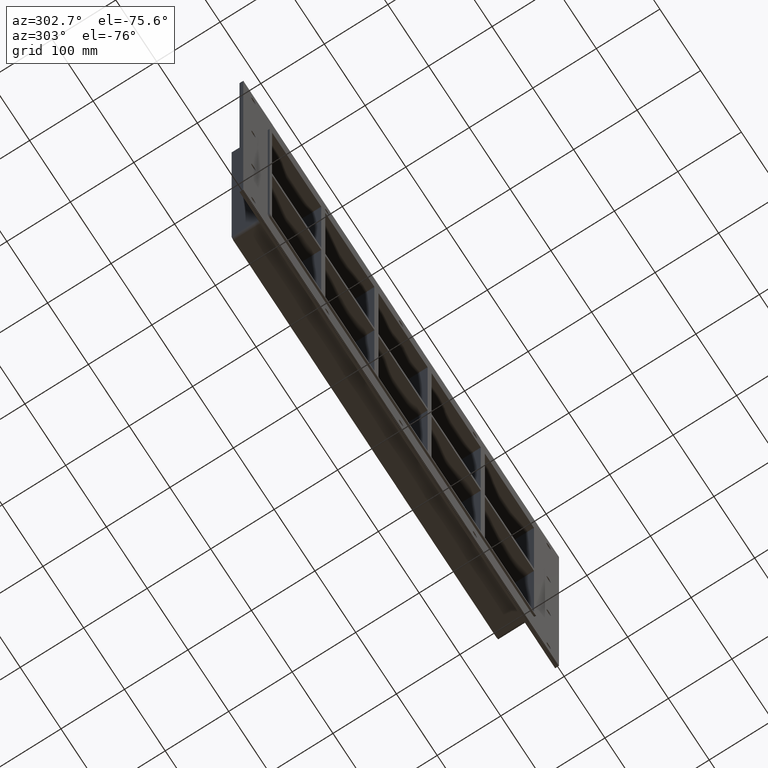
[diagram: clean part render]
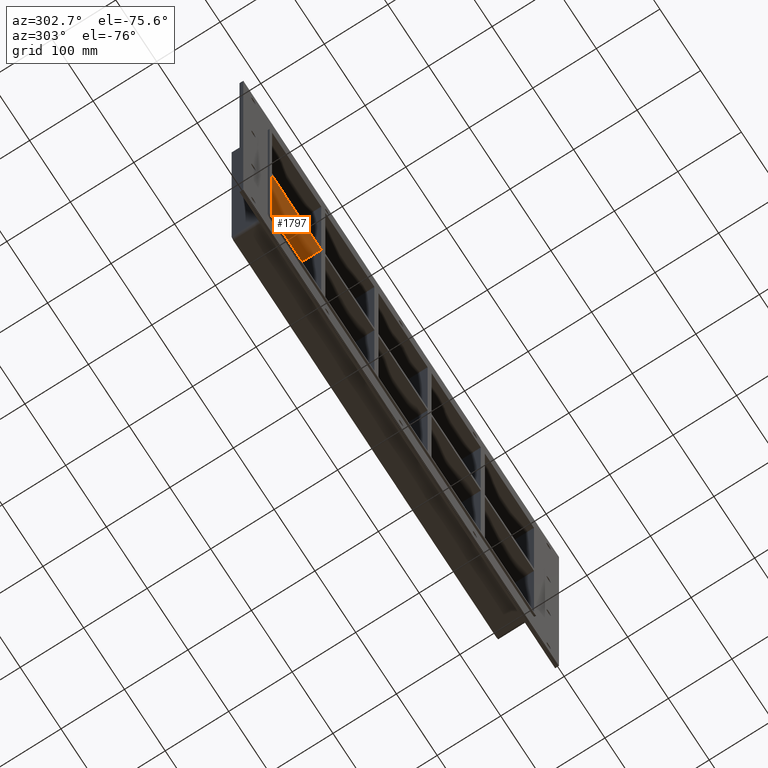
[diagram: same view with one face highlighted and labeled with its STEP entity id]
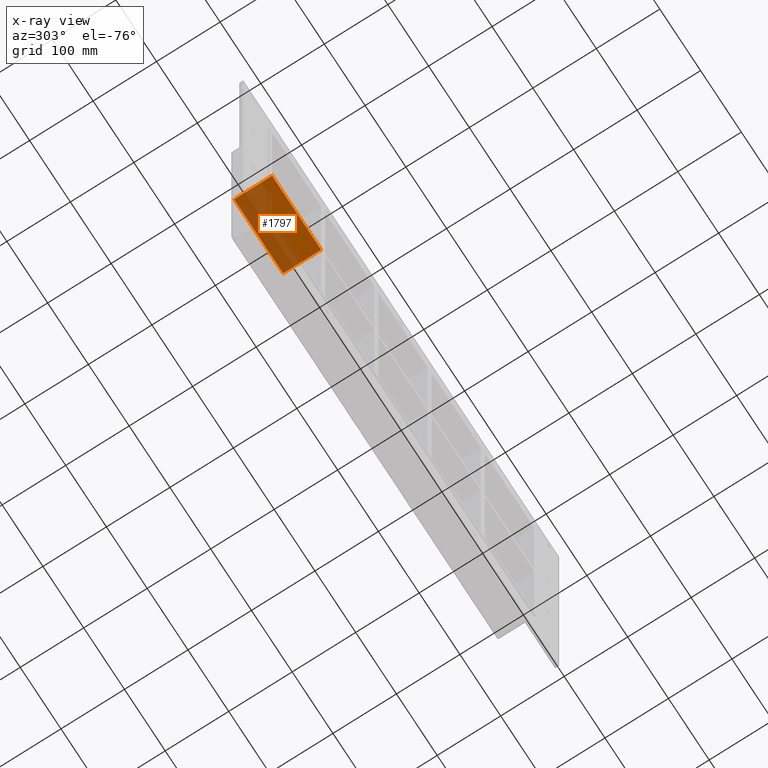
[diagram: x-ray of the same camera — body ghosted, the highlighted face saturated]
A machine part, auxiliary view. The second image highlights one B-rep face of the part: STEP entity #1797.
The next image is the same camera in x-ray: the body ghosted, the highlighted face saturated — about 54% of this face is hidden behind the body in this view.
In plain terms, the highlighted planar face has unit normal (0, 0, -1).
Its self-contained STEP definition (entity closure, byte-faithful):
#1295=CARTESIAN_POINT('',(-200.75000000000202,-3.0,-6.000000000010171));
#1296=VERTEX_POINT('',#1295);
#1297=CARTESIAN_POINT('',(-321.25000000000034,-3.0,-6.000000000010175));
#1298=VERTEX_POINT('',#1297);
#1299=CARTESIAN_POINT('',(-200.75000000000205,-3.0,-6.000000000010171));
#1300=DIRECTION('',(-1.0,0.0,0.0));
#1301=VECTOR('',#1300,120.49999999999818);
#1302=LINE('',#1299,#1301);
#1303=EDGE_CURVE('',#1296,#1298,#1302,.T.);
#1600=CARTESIAN_POINT('',(-321.25000000000034,57.0,-6.000000000010175));
#1601=VERTEX_POINT('',#1600);
#1618=CARTESIAN_POINT('',(-200.75000000000202,57.0,-6.000000000010171));
#1619=VERTEX_POINT('',#1618);
#1626=CARTESIAN_POINT('',(-200.75000000000205,57.0,-6.000000000010171));
#1627=DIRECTION('',(-1.0,0.0,0.0));
#1628=VECTOR('',#1627,120.49999999999818);
#1629=LINE('',#1626,#1628);
#1630=EDGE_CURVE('',#1619,#1601,#1629,.T.);
#1776=CARTESIAN_POINT('',(321.25,-3.0,-6.000000000010157));
#1777=DIRECTION('',(0.0,0.0,-1.0));
#1778=DIRECTION('',(-1.0,0.0,0.0));
#1779=AXIS2_PLACEMENT_3D('',#1776,#1777,#1778);
#1780=PLANE('',#1779);
#1781=CARTESIAN_POINT('',(-200.75000000000202,-3.0,-6.000000000010147));
#1782=DIRECTION('',(0.0,1.0,0.0));
#1783=VECTOR('',#1782,60.0);
#1784=LINE('',#1781,#1783);
#1785=EDGE_CURVE('',#1296,#1619,#1784,.T.);
#1786=ORIENTED_EDGE('',*,*,#1785,.F.);
#1787=ORIENTED_EDGE('',*,*,#1303,.T.);
#1788=CARTESIAN_POINT('',(-321.25,57.000000000000007,-6.000000000010148));
#1789=DIRECTION('',(0.0,-1.0,0.0));
#1790=VECTOR('',#1789,60.000000000000007);
#1791=LINE('',#1788,#1790);
#1792=EDGE_CURVE('',#1601,#1298,#1791,.T.);
#1793=ORIENTED_EDGE('',*,*,#1792,.F.);
#1794=ORIENTED_EDGE('',*,*,#1630,.F.);
#1795=EDGE_LOOP('',(#1786,#1787,#1793,#1794));
#1796=FACE_OUTER_BOUND('',#1795,.T.);
#1797=ADVANCED_FACE('',(#1796),#1780,.T.);